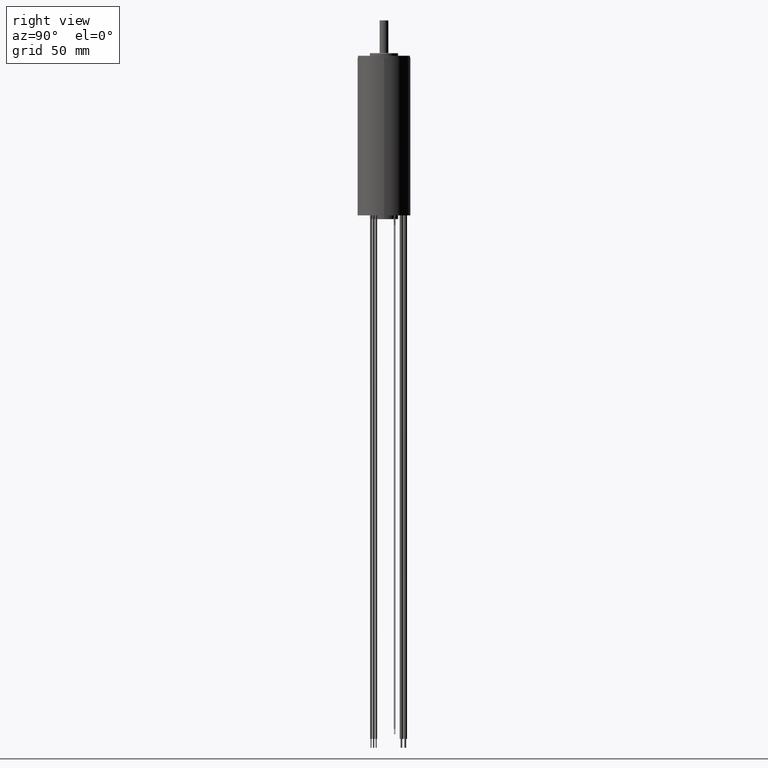
[diagram: clean part render]
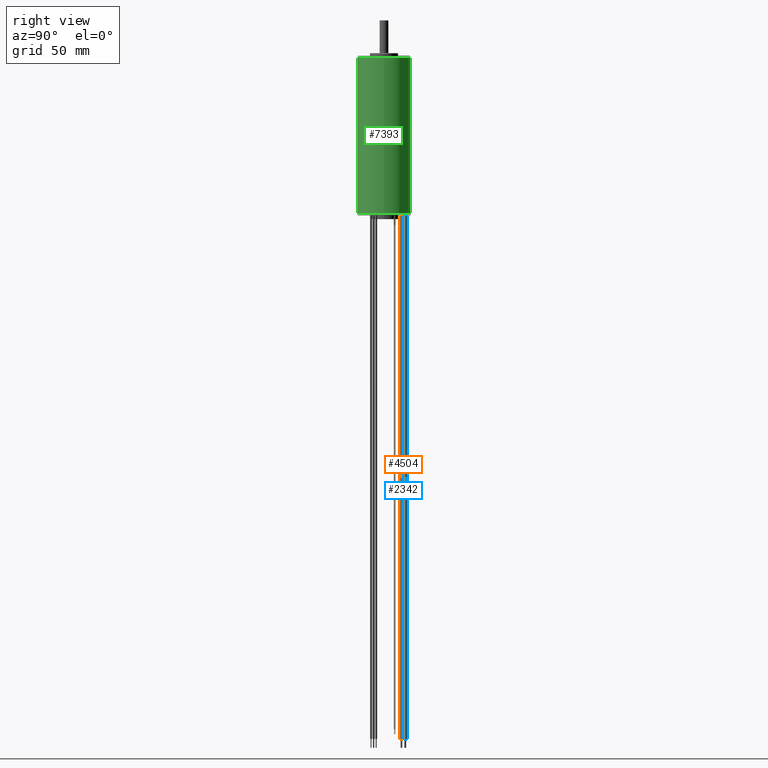
[diagram: same view with three faces highlighted in distinct colors, each labeled with its STEP entity id]
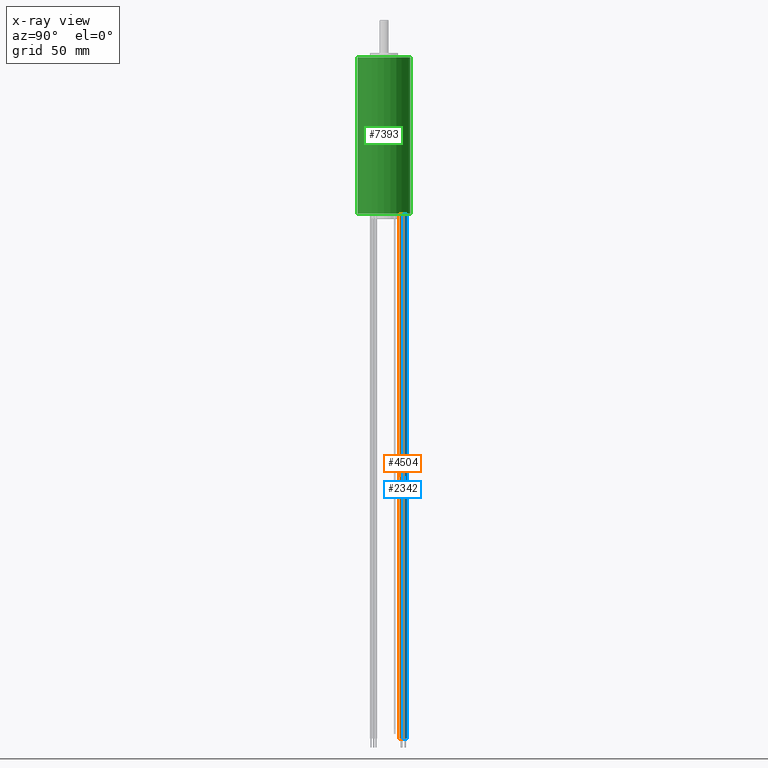
[diagram: x-ray of the same camera — body ghosted, the three highlighted faces saturated]
A machine part, right view with three faces highlighted in distinct colors.
The next image is the same camera in x-ray (body ghosted, the three faces saturated) — at least one of them is partly hidden behind the body in this view.
Their STEP definitions:

[orange] entity #4504 — the highlighted cylindrical surface (bore or boss wall) has radius 1 mm, axis along (0, 0, -1).
#127 = ORIENTED_EDGE ( 'NONE', *, *, #3935, .T. ) ;
#346 = ORIENTED_EDGE ( 'NONE', *, *, #8197, .F. ) ;
#751 = CIRCLE ( 'NONE', #4063, 1.000000000000000222 ) ;
#769 = CIRCLE ( 'NONE', #4038, 1.000000000000000222 ) ;
#1843 = DIRECTION ( 'NONE',  ( 0.0000000000000000000, 0.0000000000000000000, 1.000000000000000000 ) ) ;
#2365 = VERTEX_POINT ( 'NONE', #3626 ) ;
#2927 = CYLINDRICAL_SURFACE ( 'NONE', #3436, 1.000000000000000222 ) ;
#3224 = CARTESIAN_POINT ( 'NONE',  ( 0.009999954458061939208, 9.800030179991848556, -296.0000000000000000 ) ) ;
#3421 = DIRECTION ( 'NONE',  ( -0.003017999228052237193, 0.9999954458299595839, 0.0000000000000000000 ) ) ;
#3436 = AXIS2_PLACEMENT_3D ( 'NONE', #4599, #4655, #3421 ) ;
#3626 = CARTESIAN_POINT ( 'NONE',  ( 0.01301795368611417814, 8.800034734161888750, 0.8499999999999996447 ) ) ;
#3780 = DIRECTION ( 'NONE',  ( 0.003017999228052237193, -0.9999954458299595839, 0.0000000000000000000 ) ) ;
#3858 = DIRECTION ( 'NONE',  ( 0.003017999228052237193, -0.9999954458299595839, 0.0000000000000000000 ) ) ;
#3935 = EDGE_CURVE ( 'NONE', #6997, #6997, #751, .T. ) ;
#4038 = AXIS2_PLACEMENT_3D ( 'NONE', #6985, #4393, #3780 ) ;
#4063 = AXIS2_PLACEMENT_3D ( 'NONE', #3224, #1843, #3858 ) ;
#4170 = EDGE_LOOP ( 'NONE', ( #127 ) ) ;
#4393 = DIRECTION ( 'NONE',  ( 0.0000000000000000000, 0.0000000000000000000, 1.000000000000000000 ) ) ;
#4504 = ADVANCED_FACE ( 'NONE', ( #4817, #8058 ), #2927, .T. ) ;
#4599 = CARTESIAN_POINT ( 'NONE',  ( 0.009999954458061939208, 9.800030179991848556, 0.8499999999999996447 ) ) ;
#4655 = DIRECTION ( 'NONE',  ( 0.0000000000000000000, 0.0000000000000000000, -1.000000000000000000 ) ) ;
#4817 = FACE_OUTER_BOUND ( 'NONE', #4170, .T. ) ;
#6985 = CARTESIAN_POINT ( 'NONE',  ( 0.009999954458061939208, 9.800030179991848556, 0.8499999999999996447 ) ) ;
#6997 = VERTEX_POINT ( 'NONE', #7918 ) ;
#7354 = EDGE_LOOP ( 'NONE', ( #346 ) ) ;
#7918 = CARTESIAN_POINT ( 'NONE',  ( 0.01301795368611417814, 8.800034734161888750, -296.0000000000000000 ) ) ;
#8058 = FACE_OUTER_BOUND ( 'NONE', #7354, .T. ) ;
#8197 = EDGE_CURVE ( 'NONE', #2365, #2365, #769, .T. ) ;

[blue] entity #2342 — the highlighted cylindrical surface (bore or boss wall) has radius 1 mm, axis along (0, -0, -1).
#20 = DIRECTION ( 'NONE',  ( 0.0000000000000000000, 0.0000000000000000000, 1.000000000000000000 ) ) ;
#104 = CARTESIAN_POINT ( 'NONE',  ( 1.259949338654908768, 11.92598308200389035, -296.0000000000000000 ) ) ;
#114 = ORIENTED_EDGE ( 'NONE', *, *, #2063, .T. ) ;
#989 = AXIS2_PLACEMENT_3D ( 'NONE', #4823, #5416, #8079 ) ;
#1065 = EDGE_LOOP ( 'NONE', ( #114 ) ) ;
#1437 = CYLINDRICAL_SURFACE ( 'NONE', #989, 0.9999999999999996669 ) ;
#1440 = DIRECTION ( 'NONE',  ( -0.8279662415403237219, -0.5607779443501592631, 0.0000000000000000000 ) ) ;
#2063 = EDGE_CURVE ( 'NONE', #6600, #6600, #4726, .T. ) ;
#2327 = FACE_OUTER_BOUND ( 'NONE', #1065, .T. ) ;
#2342 = ADVANCED_FACE ( 'NONE', ( #2327, #4617 ), #1437, .T. ) ;
#3017 = AXIS2_PLACEMENT_3D ( 'NONE', #104, #20, #7175 ) ;
#4066 = DIRECTION ( 'NONE',  ( 0.0000000000000000000, 0.0000000000000000000, 1.000000000000000000 ) ) ;
#4142 = CARTESIAN_POINT ( 'NONE',  ( 0.4319830971145852683, 11.36520513765373153, -296.0000000000000000 ) ) ;
#4617 = FACE_OUTER_BOUND ( 'NONE', #5624, .T. ) ;
#4726 = CIRCLE ( 'NONE', #3017, 0.9999999999999996669 ) ;
#4823 = CARTESIAN_POINT ( 'NONE',  ( 1.259949338654908768, 11.92598308200389035, 0.8499999999999996447 ) ) ;
#5416 = DIRECTION ( 'NONE',  ( 0.0000000000000000000, -0.0000000000000000000, -1.000000000000000000 ) ) ;
#5624 = EDGE_LOOP ( 'NONE', ( #7007 ) ) ;
#6426 = EDGE_CURVE ( 'NONE', #7323, #7323, #6460, .T. ) ;
#6460 = CIRCLE ( 'NONE', #6543, 0.9999999999999996669 ) ;
#6543 = AXIS2_PLACEMENT_3D ( 'NONE', #7218, #4066, #1440 ) ;
#6600 = VERTEX_POINT ( 'NONE', #4142 ) ;
#6767 = CARTESIAN_POINT ( 'NONE',  ( 0.4319830971145852683, 11.36520513765373153, 0.8499999999999996447 ) ) ;
#7007 = ORIENTED_EDGE ( 'NONE', *, *, #6426, .F. ) ;
#7175 = DIRECTION ( 'NONE',  ( -0.8279662415403237219, -0.5607779443501592631, 0.0000000000000000000 ) ) ;
#7218 = CARTESIAN_POINT ( 'NONE',  ( 1.259949338654908768, 11.92598308200389035, 0.8499999999999996447 ) ) ;
#7323 = VERTEX_POINT ( 'NONE', #6767 ) ;
#8079 = DIRECTION ( 'NONE',  ( 0.8279662415403236109, 0.5607779443501592631, 0.0000000000000000000 ) ) ;

[green] entity #7393 — the highlighted cylindrical surface (bore or boss wall) has radius 15 mm, axis along (0, 0, -1).
#147 = AXIS2_PLACEMENT_3D ( 'NONE', #497, #473, #5608 ) ;
#473 = DIRECTION ( 'NONE',  ( 0.0000000000000000000, 0.0000000000000000000, 1.000000000000000000 ) ) ;
#497 = CARTESIAN_POINT ( 'NONE',  ( 0.0000000000000000000, 0.0000000000000000000, 88.00000000000000000 ) ) ;
#571 = DIRECTION ( 'NONE',  ( 0.0000000000000000000, 0.0000000000000000000, 1.000000000000000000 ) ) ;
#740 = EDGE_CURVE ( 'NONE', #4257, #4257, #7857, .T. ) ;
#967 = CARTESIAN_POINT ( 'NONE',  ( 15.00000000000000000, 0.0000000000000000000, 88.00000000000000000 ) ) ;
#1020 = EDGE_LOOP ( 'NONE', ( #2587 ) ) ;
#1291 = EDGE_LOOP ( 'NONE', ( #1671 ) ) ;
#1308 = CARTESIAN_POINT ( 'NONE',  ( 0.0000000000000000000, 0.0000000000000000000, 0.0000000000000000000 ) ) ;
#1610 = CYLINDRICAL_SURFACE ( 'NONE', #3108, 15.00000000000000000 ) ;
#1671 = ORIENTED_EDGE ( 'NONE', *, *, #740, .T. ) ;
#1746 = CARTESIAN_POINT ( 'NONE',  ( 0.0000000000000000000, 0.0000000000000000000, 88.00000000000000000 ) ) ;
#2178 = AXIS2_PLACEMENT_3D ( 'NONE', #1308, #571, #3833 ) ;
#2431 = EDGE_CURVE ( 'NONE', #3744, #3744, #5462, .T. ) ;
#2495 = FACE_OUTER_BOUND ( 'NONE', #1020, .T. ) ;
#2587 = ORIENTED_EDGE ( 'NONE', *, *, #2431, .F. ) ;
#3108 = AXIS2_PLACEMENT_3D ( 'NONE', #1746, #7681, #5035 ) ;
#3744 = VERTEX_POINT ( 'NONE', #967 ) ;
#3833 = DIRECTION ( 'NONE',  ( 1.000000000000000000, 0.0000000000000000000, 0.0000000000000000000 ) ) ;
#3910 = CARTESIAN_POINT ( 'NONE',  ( 15.00000000000000000, 0.0000000000000000000, 0.0000000000000000000 ) ) ;
#4257 = VERTEX_POINT ( 'NONE', #3910 ) ;
#4396 = FACE_OUTER_BOUND ( 'NONE', #1291, .T. ) ;
#5035 = DIRECTION ( 'NONE',  ( -1.000000000000000000, 0.0000000000000000000, 0.0000000000000000000 ) ) ;
#5462 = CIRCLE ( 'NONE', #147, 15.00000000000000000 ) ;
#5608 = DIRECTION ( 'NONE',  ( 1.000000000000000000, 0.0000000000000000000, 0.0000000000000000000 ) ) ;
#7393 = ADVANCED_FACE ( 'NONE', ( #4396, #2495 ), #1610, .T. ) ;
#7681 = DIRECTION ( 'NONE',  ( 0.0000000000000000000, 0.0000000000000000000, -1.000000000000000000 ) ) ;
#7857 = CIRCLE ( 'NONE', #2178, 15.00000000000000000 ) ;